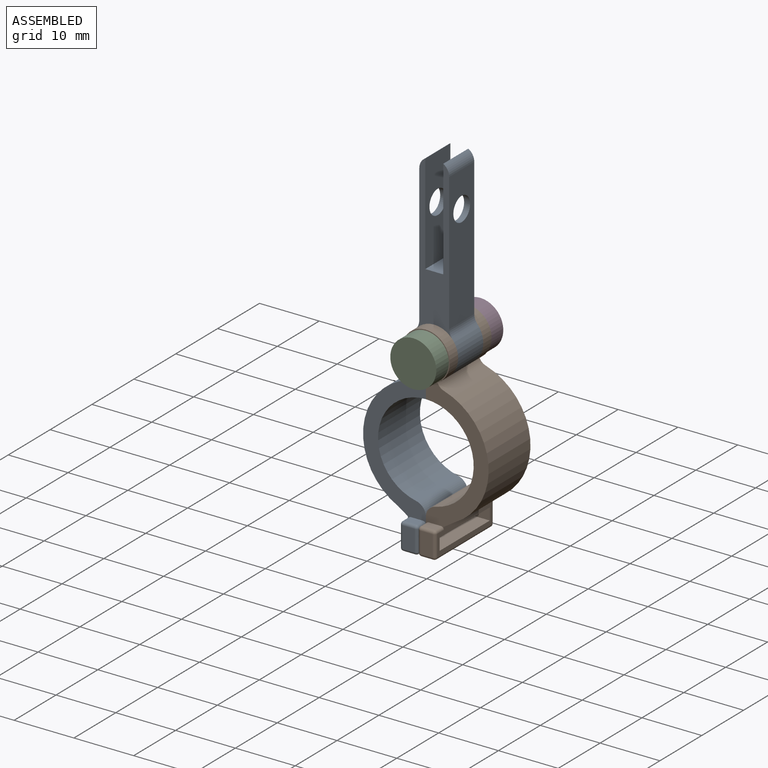
[diagram: assembled view]
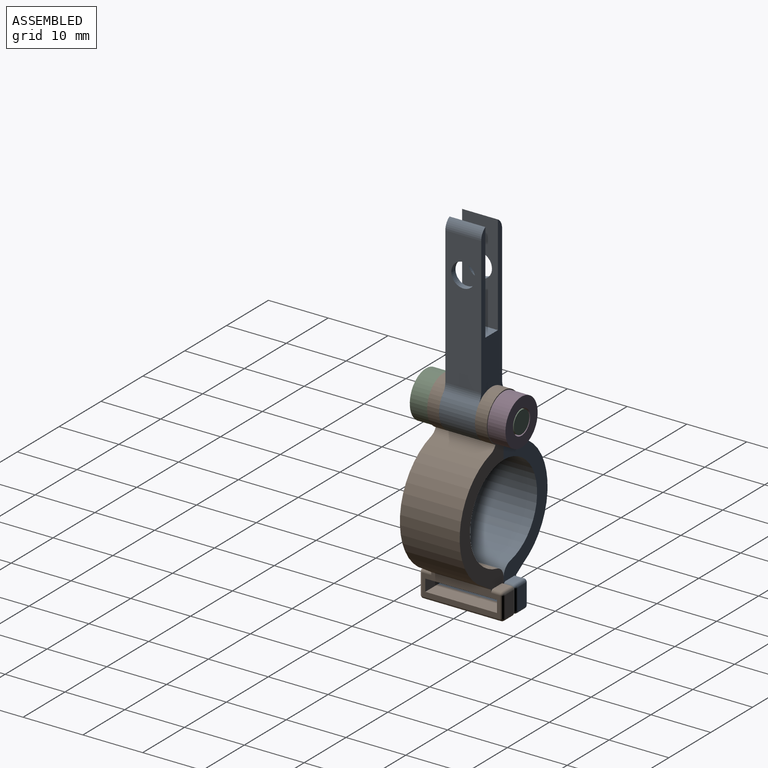
[diagram: assembled view, second angle]
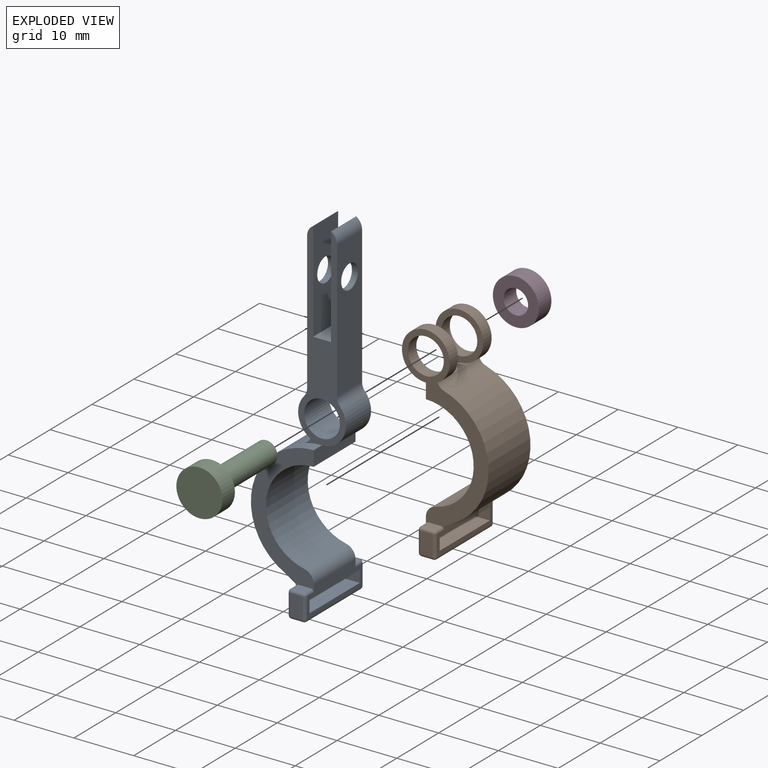
[diagram: exploded view]
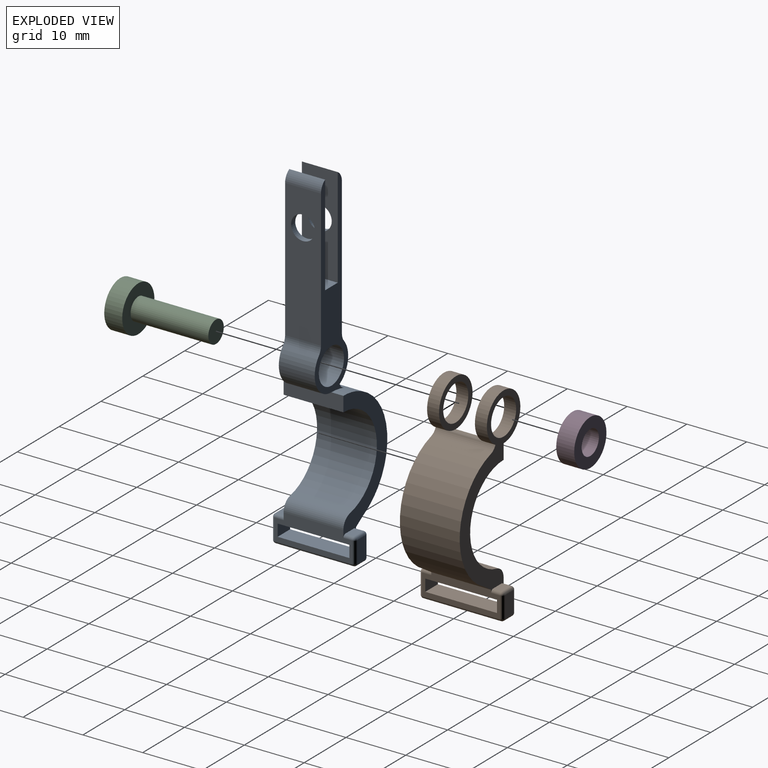
[diagram: exploded view, second angle]
ASSEMBLY  parts=4 mates=3
PART A: 59 faces, bbox 14.5x14x58.2 mm
  f0: plane 33.16x8mm, normal (0,-1,0), area 96.6mm2, adj f1,f2,f7,f10,f15,f16,f27,f28
  f1: cylinder r=2mm len=6mm, axis (0,1,0), area 12.6mm2, adj f0,f14,f29,f33
  f2: cylinder r=4mm len=6.67mm, axis (0,1,0), area 55.3mm2, adj f0,f9,f14,f27
  f3: plane 13x4.7mm, normal (1,0,0), area 33.5mm2, adj f11,f12,f13,f23,f24,f25,f26,f39
  f4: plane 13x4mm, normal (-1,0,0), area 26.5mm2, adj f11,f12,f17,f23,f24,f25,f26,f35
  f5: cylinder r=10.5mm len=19.42mm, axis (0,1,0), area 249.8mm2, adj f7,f11,f12,f17
  f6: cylinder r=10.5mm len=2.99mm, axis (0,1,0), area 6.1mm2, adj f7,f9,f12,f14
  f7: cylinder r=1.73mm len=10mm, axis (0,1,0), area 9.6mm2, adj f0,f5,f6,f10,f11,f12,f14,f16
  f8: cylinder r=8mm len=15.84mm, axis (0,1,0), area 235.2mm2, adj f9,f11,f12,f13
  f9: plane 10x2.5mm, normal (1,0,0), area 25mm2, adj f2,f6,f8,f10,f11,f12
  f10: cylinder r=10.5mm len=2.99mm, axis (0,1,0), area 6.1mm2, adj f0,f7,f9,f11
  f11: plane 21.5x10.5mm, normal (0,-1,0), area 72.9mm2, adj f3,f4,f5,f7,f8,f9,f10,f13
  f12: plane 21.5x10.5mm, normal (0,1,0), area 72.9mm2, adj f3,f4,f5,f6,f7,f8,f9,f13
  f13: cylinder r=2mm len=10mm, axis (0,1,0), area 27.4mm2, adj f3,f8,f11,f12
  f14: plane 33.16x8mm, normal (0,1,0), area 96.6mm2, adj f1,f2,f6,f7,f15,f16,f27,f28
  f15: cylinder r=3mm len=6mm, axis (0,1,0), area 113.1mm2, adj f0,f14
  f16: cylinder r=4mm len=6.16mm, axis (0,1,0), area 43mm2, adj f0,f7,f14,f28
  f17: plane 10x1.71mm, normal (-0.55,0,-0.84), area 20.5mm2, adj f4,f5,f11,f12
  f18: plane 2x1.5mm, normal (0,0,1), area 3mm2, adj f11,f35,f38,f39
  f19: plane 2x1.5mm, normal (0,0,1), area 3mm2, adj f12,f47,f53,f56
  f20: plane 13x2mm, normal (0,0,-1), area 26mm2, adj f42,f43,f49,f50
  f21: plane 3.5x2mm, normal (0,-1,0), area 7mm2, adj f37,f38,f43,f44
  f22: plane 3.5x2mm, normal (0,1,0), area 7mm2, adj f48,f49,f53,f54
  f23: plane 12x3mm, normal (0,0,-1), area 36mm2, adj f3,f4,f24,f26
  f24: plane 3x2mm, normal (0,1,0), area 6mm2, adj f3,f4,f23,f25
  f25: plane 12x3mm, normal (0,0,1), area 36mm2, adj f3,f4,f24,f26
  f26: plane 3x2mm, normal (0,-1,0), area 6mm2, adj f3,f4,f23,f25
  f27: cylinder r=2.06mm len=6mm, axis (0,1,0), area 8.6mm2, adj f0,f2,f14,f30
  f28: cylinder r=2.06mm len=6mm, axis (0,1,0), area 8.6mm2, adj f0,f14,f16,f29
  f29: plane 23x6mm, normal (-1,0,0), area 125.4mm2, adj f0,f1,f14,f28,f57
  f30: plane 23x6mm, normal (1,0,0), area 125.4mm2, adj f0,f14,f27,f31,f58
  f31: cylinder r=2mm len=6mm, axis (0,1,0), area 12.6mm2, adj f0,f14,f30,f32
  f32: plane 16.72x6mm, normal (-1,0,0), area 87.8mm2, adj f0,f14,f31,f34,f58
  f33: plane 16.72x6mm, normal (1,0,0), area 87.8mm2, adj f0,f1,f14,f34,f57
  f34: plane 6x3mm, normal (0,0,1), area 18mm2, adj f0,f14,f32,f33
  f35: cylinder r=0.5mm len=1.5mm, axis (0,1,0), area 1.2mm2, adj f4,f11,f18,f36
  f36: sphere r=0.5mm, area 0.4mm2, adj f35,f37,f38
  f37: cylinder r=0.5mm len=3.5mm, axis (0,0,1), area 2.7mm2, adj f4,f21,f36,f40
  f38: cylinder r=0.5mm len=2mm, axis (1,0,0), area 1.6mm2, adj f18,f21,f36,f41
  f39: cylinder r=0.5mm len=1.5mm, axis (0,-1,0), area 1.2mm2, adj f3,f11,f18,f41
  f40: sphere r=0.5mm, area 0.4mm2, adj f37,f42,f43
  f41: sphere r=0.5mm, area 0.4mm2, adj f38,f39,f44
  f42: cylinder r=0.5mm len=13mm, axis (0,-1,0), area 10.2mm2, adj f4,f20,f40,f45
  f43: cylinder r=0.5mm len=2mm, axis (-1,0,0), area 1.6mm2, adj f20,f21,f40,f46
  f44: cylinder r=0.5mm len=3.5mm, axis (0,0,-1), area 2.7mm2, adj f3,f21,f41,f46
  f45: sphere r=0.5mm, area 0.4mm2, adj f42,f48,f49
  f46: sphere r=0.5mm, area 0.4mm2, adj f43,f44,f50
  f47: cylinder r=0.5mm len=1.5mm, axis (0,1,0), area 1.2mm2, adj f4,f12,f19,f51
  f48: cylinder r=0.5mm len=3.5mm, axis (0,0,-1), area 2.7mm2, adj f4,f22,f45,f51
  f49: cylinder r=0.5mm len=2mm, axis (1,0,0), area 1.6mm2, adj f20,f22,f45,f52
  f50: cylinder r=0.5mm len=13mm, axis (0,1,0), area 10.2mm2, adj f3,f20,f46,f52
  f51: sphere r=0.5mm, area 0.4mm2, adj f47,f48,f53
  f52: sphere r=0.5mm, area 0.4mm2, adj f49,f50,f54
  f53: cylinder r=0.5mm len=2mm, axis (-1,0,0), area 1.6mm2, adj f19,f22,f51,f55
  f54: cylinder r=0.5mm len=3.5mm, axis (0,0,1), area 2.7mm2, adj f3,f22,f52,f55
  f55: sphere r=0.5mm, area 0.4mm2, adj f53,f54,f56
  f56: cylinder r=0.5mm len=1.5mm, axis (0,-1,0), area 1.2mm2, adj f3,f12,f19,f55
  f57: cylinder r=2mm len=4mm, axis (1,0,0), area 12.6mm2, adj f29,f33
  f58: cylinder r=2mm len=4mm, axis (1,0,0), area 12.6mm2, adj f30,f32
PART B: 48 faces, bbox 14.5x14x33.5 mm
  f0: cylinder r=4mm len=8mm, axis (0,1,0), area 46.2mm2, adj f5,f7,f9,f24
  f1: cylinder r=3mm len=6mm, axis (0,1,0), area 37.7mm2, adj f9,f24
  f2: plane 13x4.7mm, normal (1,0,0), area 33.5mm2, adj f8,f9,f10,f19,f20,f21,f22,f30
  f3: plane 13x4mm, normal (-1,0,0), area 26.5mm2, adj f8,f9,f13,f19,f20,f21,f22,f26
  f4: cylinder r=10.5mm len=19.31mm, axis (0,1,0), area 247.3mm2, adj f5,f8,f9,f13
  f5: cylinder r=1.73mm len=10mm, axis (0,1,0), area 15.3mm2, adj f0,f4,f8,f9,f11,f23
  f6: cylinder r=8mm len=15.84mm, axis (0,1,0), area 235.2mm2, adj f7,f8,f9,f10
  f7: plane 10x2.5mm, normal (1,0,0), area 25mm2, adj f0,f6,f8,f9,f11,f23
  f8: plane 29.5x14.5mm, normal (0,-1,0), area 95.6mm2, adj f2,f3,f4,f5,f6,f7,f10,f11
  f9: plane 29.5x14.5mm, normal (0,1,0), area 95.6mm2, adj f0,f1,f2,f3,f4,f5,f6,f7
  f10: cylinder r=2mm len=10mm, axis (0,1,0), area 27.4mm2, adj f2,f6,f8,f9
  f11: cylinder r=4mm len=8mm, axis (0,1,0), area 46.2mm2, adj f5,f7,f8,f25
  f12: cylinder r=3mm len=6mm, axis (0,1,0), area 37.7mm2, adj f8,f25
  f13: plane 10x1.94mm, normal (-0.54,0,-0.84), area 22.9mm2, adj f3,f4,f8,f9
  f14: plane 2x1.5mm, normal (0,0,1), area 3mm2, adj f8,f26,f29,f30
  f15: plane 2x1.5mm, normal (0,0,1), area 3mm2, adj f9,f38,f44,f47
  f16: plane 13x2mm, normal (0,0,-1), area 26mm2, adj f33,f34,f40,f41
  f17: plane 3.5x2mm, normal (0,-1,0), area 7mm2, adj f28,f29,f34,f35
  f18: plane 3.5x2mm, normal (0,1,0), area 7mm2, adj f39,f40,f44,f45
  f19: plane 12x3mm, normal (0,0,-1), area 36mm2, adj f2,f3,f20,f22
  f20: plane 3x2mm, normal (0,1,0), area 6mm2, adj f2,f3,f19,f21
  f21: plane 12x3mm, normal (0,0,1), area 36mm2, adj f2,f3,f20,f22
  f22: plane 3x2mm, normal (0,-1,0), area 6mm2, adj f2,f3,f19,f21
  f23: cylinder r=4mm len=6mm, axis (0,-1,0), area 12.2mm2, adj f5,f7,f24,f25
  f24: plane 8x8mm, normal (0,-1,0), area 22mm2, adj f0,f1,f23
  f25: plane 8x8mm, normal (0,1,0), area 22mm2, adj f11,f12,f23
  f26: cylinder r=0.5mm len=1.5mm, axis (0,1,0), area 1.2mm2, adj f3,f8,f14,f27
  f27: sphere r=0.5mm, area 0.4mm2, adj f26,f28,f29
  f28: cylinder r=0.5mm len=3.5mm, axis (0,0,1), area 2.7mm2, adj f3,f17,f27,f31
  f29: cylinder r=0.5mm len=2mm, axis (1,0,0), area 1.6mm2, adj f14,f17,f27,f32
  f30: cylinder r=0.5mm len=1.5mm, axis (0,-1,0), area 1.2mm2, adj f2,f8,f14,f32
  f31: sphere r=0.5mm, area 0.4mm2, adj f28,f33,f34
  f32: sphere r=0.5mm, area 0.4mm2, adj f29,f30,f35
  f33: cylinder r=0.5mm len=13mm, axis (0,-1,0), area 10.2mm2, adj f3,f16,f31,f36
  f34: cylinder r=0.5mm len=2mm, axis (-1,0,0), area 1.6mm2, adj f16,f17,f31,f37
  f35: cylinder r=0.5mm len=3.5mm, axis (0,0,-1), area 2.7mm2, adj f2,f17,f32,f37
  f36: sphere r=0.5mm, area 0.4mm2, adj f33,f39,f40
  f37: sphere r=0.5mm, area 0.4mm2, adj f34,f35,f41
  f38: cylinder r=0.5mm len=1.5mm, axis (0,1,0), area 1.2mm2, adj f3,f9,f15,f42
  f39: cylinder r=0.5mm len=3.5mm, axis (0,0,-1), area 2.7mm2, adj f3,f18,f36,f42
  f40: cylinder r=0.5mm len=2mm, axis (1,0,0), area 1.6mm2, adj f16,f18,f36,f43
  f41: cylinder r=0.5mm len=13mm, axis (0,1,0), area 10.2mm2, adj f2,f16,f37,f43
  f42: sphere r=0.5mm, area 0.4mm2, adj f38,f39,f44
  f43: sphere r=0.5mm, area 0.4mm2, adj f40,f41,f45
  f44: cylinder r=0.5mm len=2mm, axis (-1,0,0), area 1.6mm2, adj f15,f18,f42,f46
  f45: cylinder r=0.5mm len=3.5mm, axis (0,0,1), area 2.7mm2, adj f2,f18,f43,f46
  f46: sphere r=0.5mm, area 0.4mm2, adj f44,f45,f47
  f47: cylinder r=0.5mm len=1.5mm, axis (0,-1,0), area 1.2mm2, adj f2,f9,f15,f46
PART C: 5 faces, bbox 7.7x16x7.7 mm
  f0: cylinder r=1.85mm len=13mm, axis (0,1,0), area 151.1mm2, adj f1,f4
  f1: plane 3.7x3.7mm, normal (0,1,0), area 10.8mm2, adj f0
  f2: cylinder r=3.85mm len=7.7mm, axis (0,1,0), area 72.6mm2, adj f3,f4
  f3: plane 7.7x7.7mm, normal (0,-1,0), area 46.6mm2, adj f2
  f4: plane 7.7x7.7mm, normal (0,1,0), area 35.8mm2, adj f0,f2
PART D: 4 faces, bbox 7.7x3x7.7 mm
  f0: cylinder r=2.05mm len=4.1mm, axis (0,1,0), area 38.6mm2, adj f2,f3
  f1: cylinder r=3.85mm len=7.7mm, axis (0,1,0), area 72.6mm2, adj f2,f3
  f2: plane 7.7x7.7mm, normal (0,-1,0), area 33.4mm2, adj f0,f1
  f3: plane 7.7x7.7mm, normal (0,1,0), area 33.4mm2, adj f0,f1
PLACE A t=(25.97,10.54,-4.44)mm fixed
PLACE B rot(axis=(0,0,1),180deg) t=(25.97,10.54,-4.44)mm
PLACE C rot(axis=(0,1,0),146.3deg) t=(25.97,18.54,10.06)mm
PLACE D rot(axis=(0,1,0),146.3deg) t=(25.97,18.54,10.06)mm
MATE revolute B.f1 <-> A.f15  axis (0,-1,0) through (25.97,13.54,10.06)mm
MATE revolute C.f0 <-> B.f1  axis (0,1,0) through (25.97,5.54,10.06)mm
MATE fastened D.f1 <-> C.f0  axis (0,1,0) through (25.97,18.54,10.06)mm
